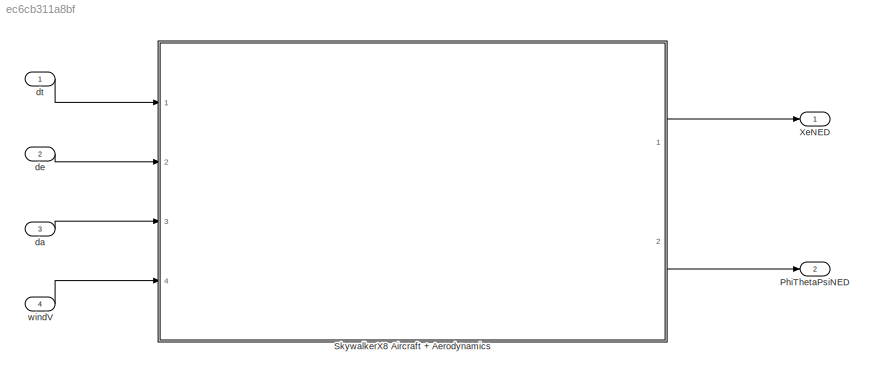
MODEL slx_ec6cb311a8bf
KIND model
CONFIG AbsTol = auto
CONFIG EnableMultiTasking = off
CONFIG FixedStep = auto
CONFIG MaxStep = auto
CONFIG MinStep = auto
CONFIG RelTol = 1e-3
CONFIG SampleTimeConstraint = Unconstrained
CONFIG Solver = VariableStepAuto
CONFIG SolverName = VariableStepAuto
CONFIG StartTime = 0.0
CONFIG StopTime = 10.0
BLOCK [Outport] PhiThetaPsiNED
  IconDisplay = Port number
  Port = 2
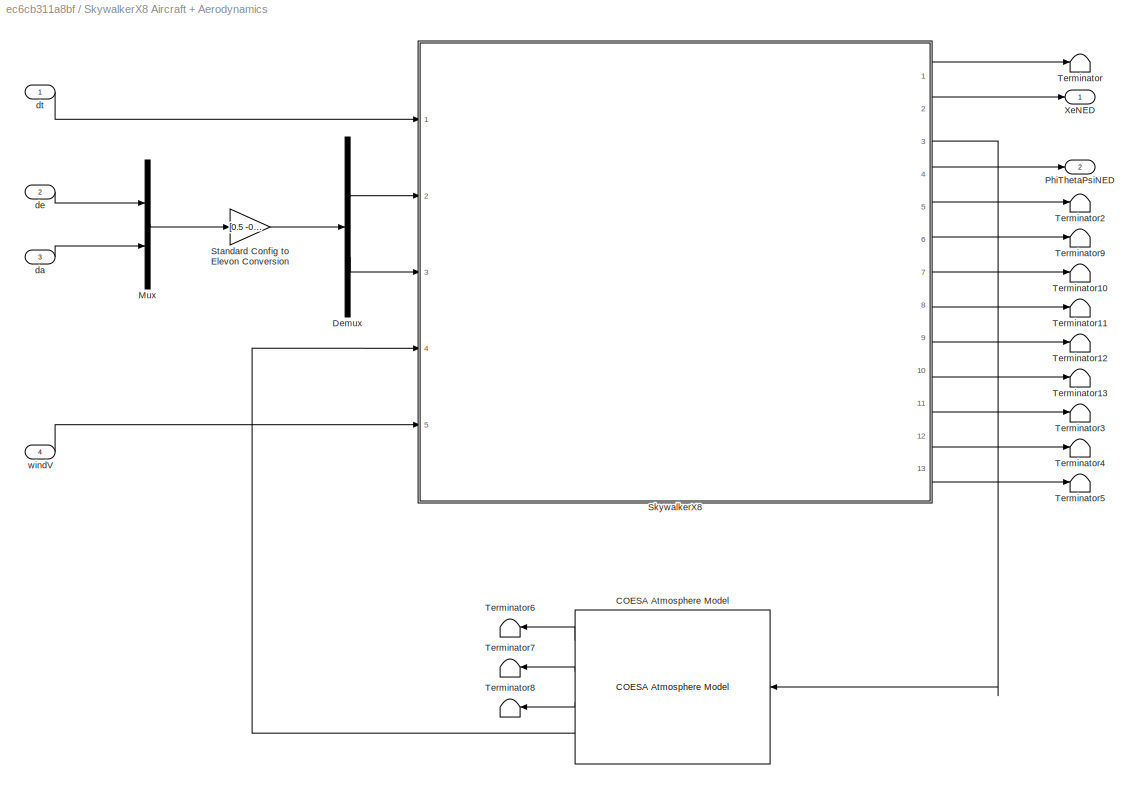
BLOCK [SubSystem] SkywalkerX8 Aircraft + Aerodynamics
  Ports = [4, 2]
  RequestExecContextInheritance = off
BLOCK [Reference] SkywalkerX8 Aircraft + Aerodynamics/COESA Atmosphere Model  REF=aerolibatmos2/COESA Atmosphere Model
  Ports = [1, 4]
  SourceBlock = aerolibatmos2/COESA Atmosphere Model
  SourceProductBaseCode = AE
  SourceProductName = Aerospace Blockset
  SourceType = Atmosphere Model
BLOCK [Demux] SkywalkerX8 Aircraft + Aerodynamics/Demux
  DisplayOption = bar
  Outputs = 2
  Ports = [1, 2]
BLOCK [Mux] SkywalkerX8 Aircraft + Aerodynamics/Mux
  DisplayOption = bar
  Inputs = 2
  Ports = [2, 1]
BLOCK [Outport] SkywalkerX8 Aircraft + Aerodynamics/PhiThetaPsiNED
  IconDisplay = Port number
  Port = 2
BLOCK [ModelReference] SkywalkerX8 Aircraft + Aerodynamics/SkywalkerX8
  ModelNameDialog = SkywalkerX8_AircraftModel
  ModelReferenceVersion = 1.163
  Ports = [5, 13]
BLOCK [Gain] SkywalkerX8 Aircraft + Aerodynamics/Standard Config to Elevon Conversion
  Gain = [0.5 -0.5;0.5 0.5]
  Multiplication = Matrix(K*u)
  OutDataTypeStr = Inherit: Inherit via internal rule
  ParamDataTypeStr = Inherit: Inherit via internal rule
  SaturateOnIntegerOverflow = off
BLOCK [Terminator] SkywalkerX8 Aircraft + Aerodynamics/Terminator
BLOCK [Terminator] SkywalkerX8 Aircraft + Aerodynamics/Terminator10
BLOCK [Terminator] SkywalkerX8 Aircraft + Aerodynamics/Terminator11
BLOCK [Terminator] SkywalkerX8 Aircraft + Aerodynamics/Terminator12
BLOCK [Terminator] SkywalkerX8 Aircraft + Aerodynamics/Terminator13
BLOCK [Terminator] SkywalkerX8 Aircraft + Aerodynamics/Terminator2
BLOCK [Terminator] SkywalkerX8 Aircraft + Aerodynamics/Terminator3
BLOCK [Terminator] SkywalkerX8 Aircraft + Aerodynamics/Terminator4
BLOCK [Terminator] SkywalkerX8 Aircraft + Aerodynamics/Terminator5
BLOCK [Terminator] SkywalkerX8 Aircraft + Aerodynamics/Terminator6
BLOCK [Terminator] SkywalkerX8 Aircraft + Aerodynamics/Terminator7
BLOCK [Terminator] SkywalkerX8 Aircraft + Aerodynamics/Terminator8
BLOCK [Terminator] SkywalkerX8 Aircraft + Aerodynamics/Terminator9
BLOCK [Outport] SkywalkerX8 Aircraft + Aerodynamics/XeNED
  IconDisplay = Port number
BLOCK [Inport] SkywalkerX8 Aircraft + Aerodynamics/da
  IconDisplay = Port number
  Port = 3
BLOCK [Inport] SkywalkerX8 Aircraft + Aerodynamics/de
  IconDisplay = Port number
  Port = 2
BLOCK [Inport] SkywalkerX8 Aircraft + Aerodynamics/dt
  IconDisplay = Port number
BLOCK [Inport] SkywalkerX8 Aircraft + Aerodynamics/windV
  IconDisplay = Port number
  Port = 4
BLOCK [Outport] XeNED
  IconDisplay = Port number
BLOCK [Inport] da
  IconDisplay = Port number
  Port = 3
BLOCK [Inport] de
  IconDisplay = Port number
  Port = 2
BLOCK [Inport] dt
  IconDisplay = Port number
BLOCK [Inport] windV
  IconDisplay = Port number
  Port = 4
LINE SkywalkerX8 Aircraft + Aerodynamics/COESA Atmosphere Model:1 -> SkywalkerX8 Aircraft + Aerodynamics/Terminator6:1
LINE SkywalkerX8 Aircraft + Aerodynamics/COESA Atmosphere Model:2 -> SkywalkerX8 Aircraft + Aerodynamics/Terminator7:1
LINE SkywalkerX8 Aircraft + Aerodynamics/COESA Atmosphere Model:3 -> SkywalkerX8 Aircraft + Aerodynamics/Terminator8:1
LINE SkywalkerX8 Aircraft + Aerodynamics/COESA Atmosphere Model:4 -> SkywalkerX8 Aircraft + Aerodynamics/SkywalkerX8:4
LINE SkywalkerX8 Aircraft + Aerodynamics/Demux:1 -> SkywalkerX8 Aircraft + Aerodynamics/SkywalkerX8:2
LINE SkywalkerX8 Aircraft + Aerodynamics/Demux:2 -> SkywalkerX8 Aircraft + Aerodynamics/SkywalkerX8:3
LINE SkywalkerX8 Aircraft + Aerodynamics/Mux:1 -> SkywalkerX8 Aircraft + Aerodynamics/Standard Config to Elevon Conversion:1
LINE SkywalkerX8 Aircraft + Aerodynamics/SkywalkerX8:1 -> SkywalkerX8 Aircraft + Aerodynamics/Terminator:1
LINE SkywalkerX8 Aircraft + Aerodynamics/SkywalkerX8:10 -> SkywalkerX8 Aircraft + Aerodynamics/Terminator13:1
LINE SkywalkerX8 Aircraft + Aerodynamics/SkywalkerX8:11 -> SkywalkerX8 Aircraft + Aerodynamics/Terminator3:1
LINE SkywalkerX8 Aircraft + Aerodynamics/SkywalkerX8:12 -> SkywalkerX8 Aircraft + Aerodynamics/Terminator4:1
LINE SkywalkerX8 Aircraft + Aerodynamics/SkywalkerX8:13 -> SkywalkerX8 Aircraft + Aerodynamics/Terminator5:1
LINE SkywalkerX8 Aircraft + Aerodynamics/SkywalkerX8:2 -> SkywalkerX8 Aircraft + Aerodynamics/XeNED:1
LINE SkywalkerX8 Aircraft + Aerodynamics/SkywalkerX8:3 -> SkywalkerX8 Aircraft + Aerodynamics/COESA Atmosphere Model:1
LINE SkywalkerX8 Aircraft + Aerodynamics/SkywalkerX8:4 -> SkywalkerX8 Aircraft + Aerodynamics/PhiThetaPsiNED:1
LINE SkywalkerX8 Aircraft + Aerodynamics/SkywalkerX8:5 -> SkywalkerX8 Aircraft + Aerodynamics/Terminator2:1
LINE SkywalkerX8 Aircraft + Aerodynamics/SkywalkerX8:6 -> SkywalkerX8 Aircraft + Aerodynamics/Terminator9:1
LINE SkywalkerX8 Aircraft + Aerodynamics/SkywalkerX8:7 -> SkywalkerX8 Aircraft + Aerodynamics/Terminator10:1
LINE SkywalkerX8 Aircraft + Aerodynamics/SkywalkerX8:8 -> SkywalkerX8 Aircraft + Aerodynamics/Terminator11:1
LINE SkywalkerX8 Aircraft + Aerodynamics/SkywalkerX8:9 -> SkywalkerX8 Aircraft + Aerodynamics/Terminator12:1
LINE SkywalkerX8 Aircraft + Aerodynamics/Standard Config to Elevon Conversion:1 -> SkywalkerX8 Aircraft + Aerodynamics/Demux:1
LINE SkywalkerX8 Aircraft + Aerodynamics/da:1 -> SkywalkerX8 Aircraft + Aerodynamics/Mux:2
LINE SkywalkerX8 Aircraft + Aerodynamics/de:1 -> SkywalkerX8 Aircraft + Aerodynamics/Mux:1
LINE SkywalkerX8 Aircraft + Aerodynamics/dt:1 -> SkywalkerX8 Aircraft + Aerodynamics/SkywalkerX8:1
LINE SkywalkerX8 Aircraft + Aerodynamics/windV:1 -> SkywalkerX8 Aircraft + Aerodynamics/SkywalkerX8:5
LINE SkywalkerX8 Aircraft + Aerodynamics:1 -> XeNED:1
LINE SkywalkerX8 Aircraft + Aerodynamics:2 -> PhiThetaPsiNED:1
LINE da:1 -> SkywalkerX8 Aircraft + Aerodynamics:3
LINE de:1 -> SkywalkerX8 Aircraft + Aerodynamics:2
LINE dt:1 -> SkywalkerX8 Aircraft + Aerodynamics:1
LINE windV:1 -> SkywalkerX8 Aircraft + Aerodynamics:4
